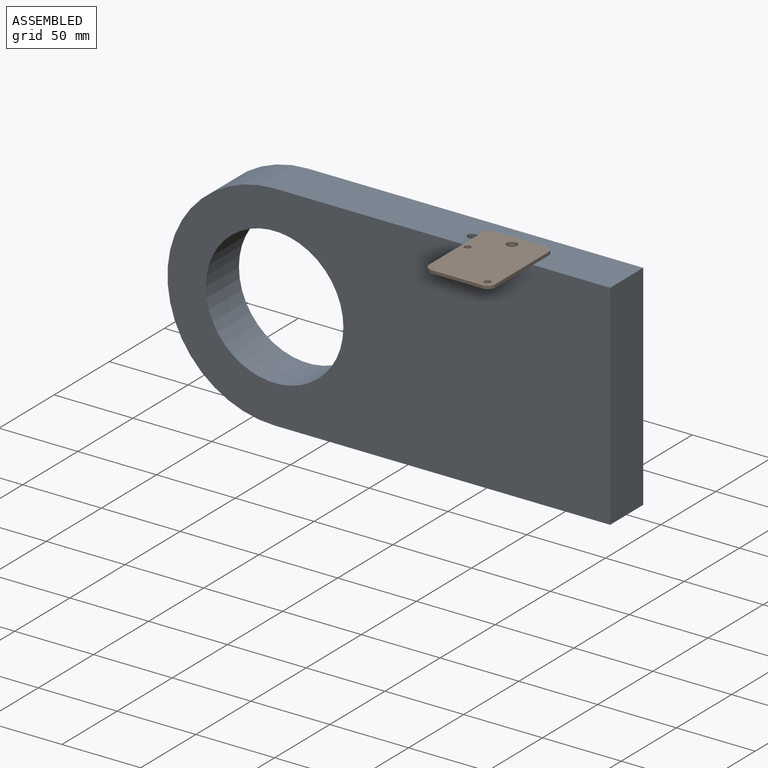
[diagram: assembled view]
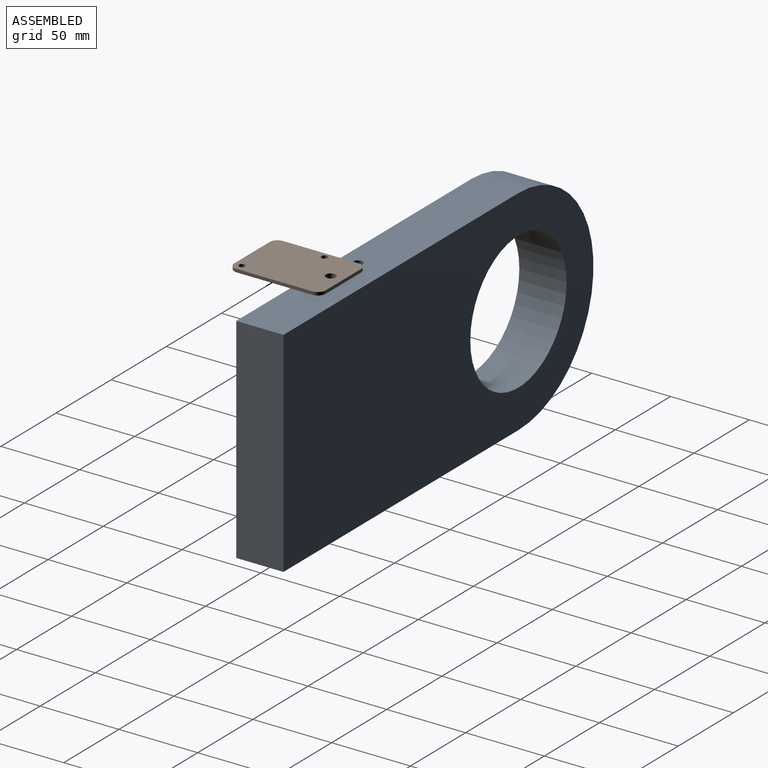
[diagram: assembled view, second angle]
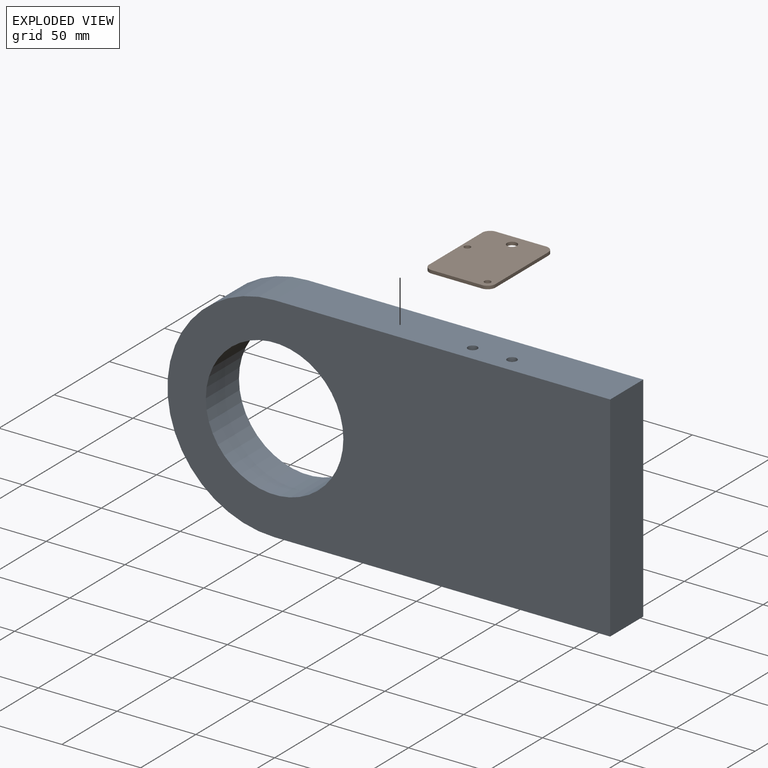
[diagram: exploded view]
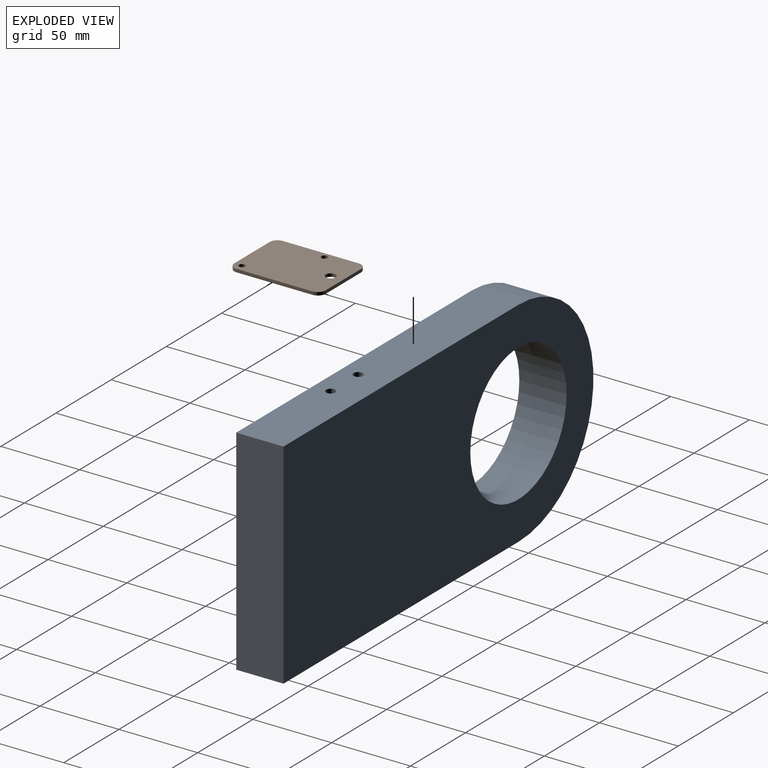
[diagram: exploded view, second angle]
ASSEMBLY  parts=2 mates=2
PART A: 11 faces, bbox 281x30x136 mm
  f0: plane 213x30mm, normal (0,0,-1), area 6390mm2, adj f1,f4,f5,f6
  f1: plane 136x30mm, normal (1,0,0), area 4080mm2, adj f0,f2,f5,f6
  f2: plane 213x30mm, normal (0,0,1), area 6333.5mm2, adj f1,f4,f5,f6,f7,f9
  f3: cylinder r=43.66mm len=87.31mm, axis (0,1,0), area 8229mm2, adj f5,f6
  f4: cylinder r=68mm len=136mm, axis (0,1,0), area 6408.8mm2, adj f0,f2,f5,f6
  f5: plane 281x136mm, normal (0,-1,0), area 30243.8mm2, adj f0,f1,f2,f3,f4
  f6: plane 281x136mm, normal (0,1,0), area 30243.8mm2, adj f0,f1,f2,f3,f4
  f7: cylinder r=3mm len=25mm, axis (0,0,1), area 471.2mm2, adj f2,f8
  f8: plane 6x6mm, normal (0,0,1), area 28.3mm2, adj f7
  f9: cylinder r=3mm len=25mm, axis (0,0,1), area 471.2mm2, adj f2,f10
  f10: plane 6x6mm, normal (0,0,1), area 28.3mm2, adj f9
PART B: 13 faces, bbox 42x2x58 mm
  f0: plane 32x2mm, normal (0,0,-1), area 64mm2, adj f4,f5,f6,f9
  f1: plane 48x2mm, normal (1,0,0), area 96mm2, adj f4,f5,f6,f7
  f2: plane 32x2mm, normal (0,0,1), area 64mm2, adj f4,f5,f7,f8
  f3: plane 48x2mm, normal (-1,0,0), area 96mm2, adj f4,f5,f8,f9
  f4: plane 58x42mm, normal (0,-1,0), area 2357.7mm2, adj f0,f1,f2,f3,f6,f7,f8,f9
  f5: plane 58x42mm, normal (0,1,0), area 2357.7mm2, adj f0,f1,f2,f3,f6,f7,f8,f9
  f6: cylinder r=5mm len=5mm, axis (0,1,0), area 15.7mm2, adj f0,f1,f4,f5
  f7: cylinder r=5mm len=5mm, axis (0,-1,0), area 15.7mm2, adj f1,f2,f4,f5
  f8: cylinder r=5mm len=5mm, axis (0,1,0), area 15.7mm2, adj f2,f3,f4,f5
  f9: cylinder r=5mm len=5mm, axis (0,-1,0), area 15.7mm2, adj f0,f3,f4,f5
  f10: cylinder r=2mm len=4mm, axis (0,-1,0), area 25.1mm2, adj f4,f5
  f11: cylinder r=2mm len=4mm, axis (0,-1,0), area 25.1mm2, adj f4,f5
  f12: cylinder r=3.17mm len=6.35mm, axis (0,-1,0), area 39.9mm2, adj f4,f5
PLACE A rot(axis=(1,0,0),0deg) t=(-43.18,93.78,53.7)mm
PLACE B rot(axis=(-1,0,0),90deg) t=(-6.68,53.78,121.7)mm
MATE cylindrical A.f9 <-> B.f12  axis (0,0,1) through (-6.68,74.78,121.7)mm
MATE planar A.f2 <-> B.f5  axis (0,0,1) through (-43.4,78.82,121.7)mm
